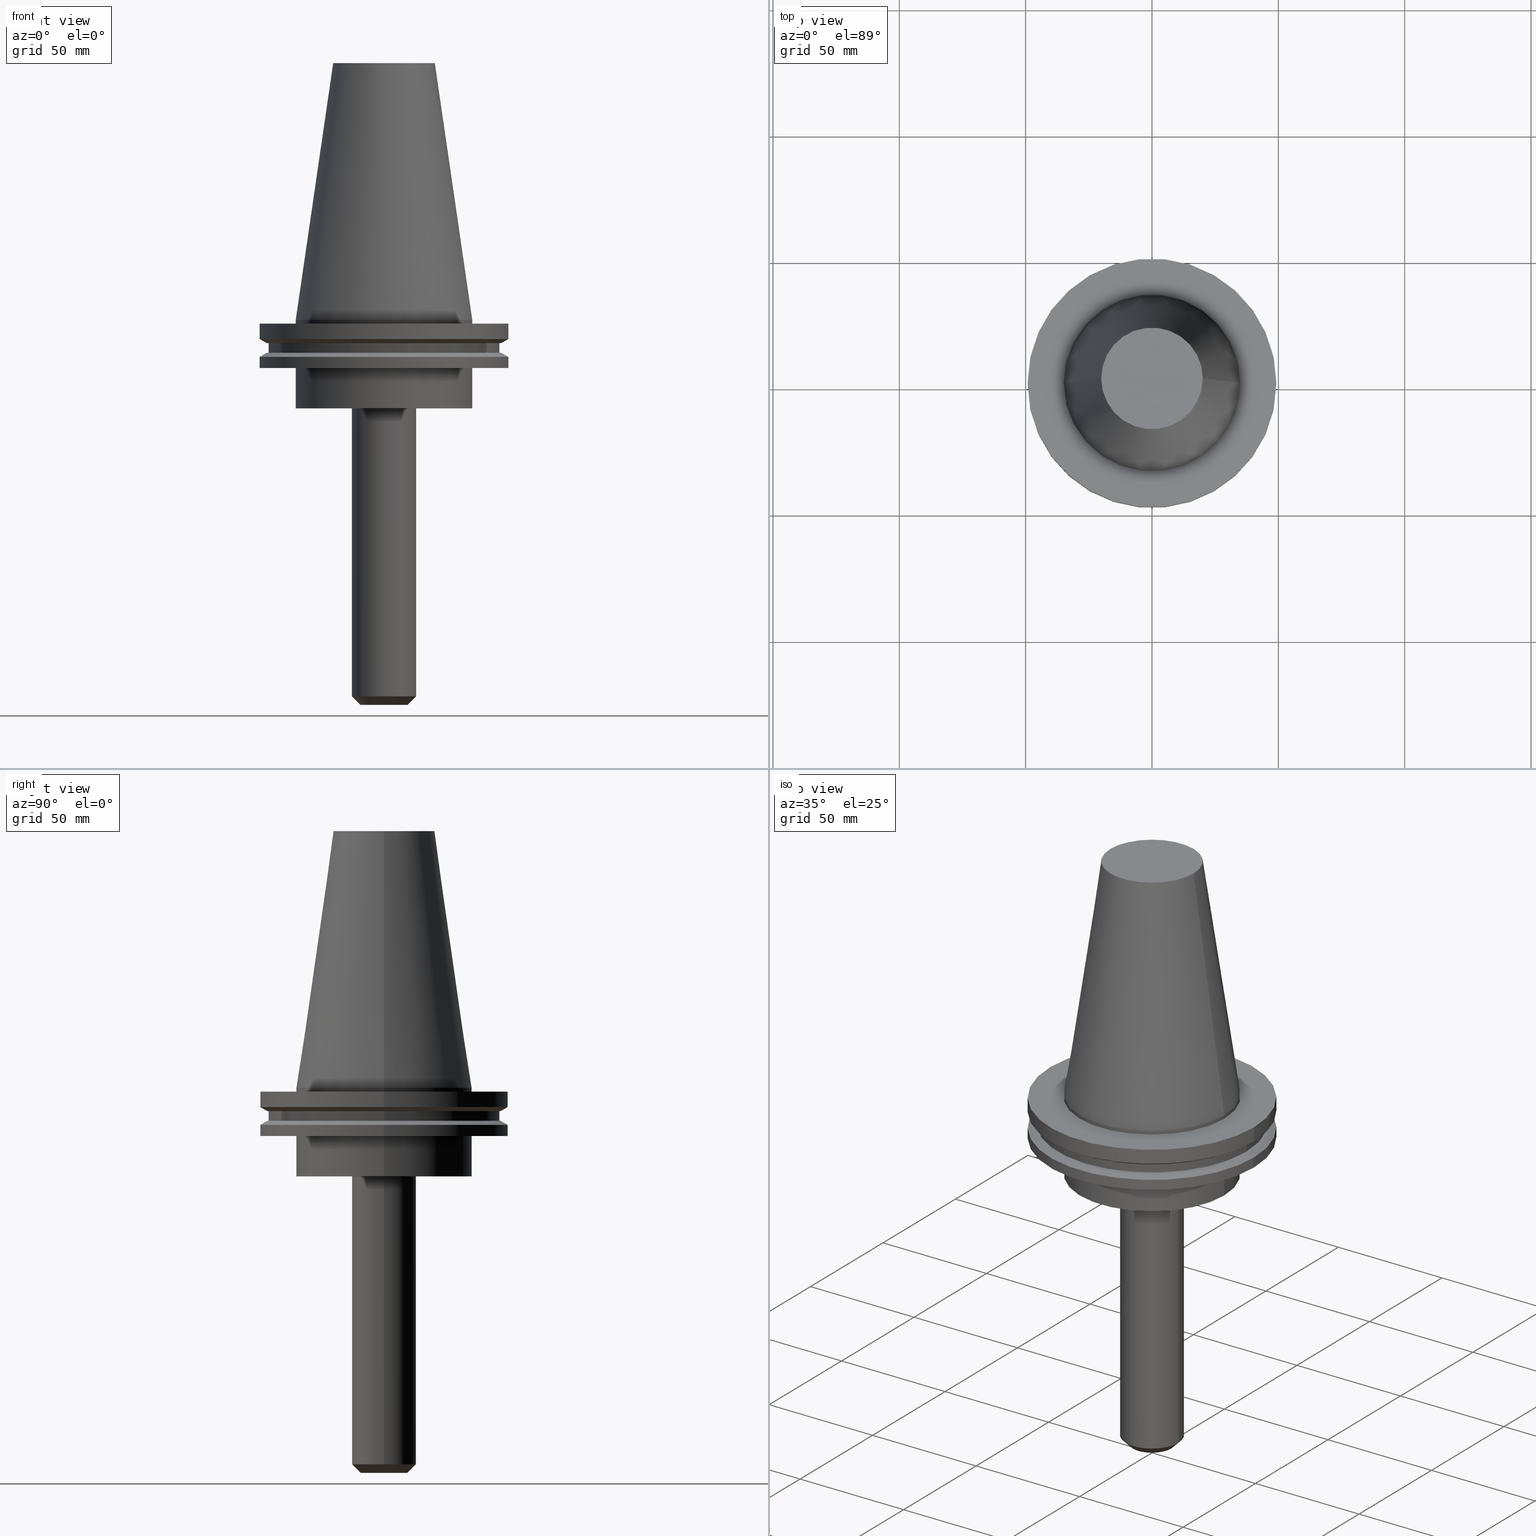
[diagram: canonical four-view strip — front | top / right | iso, engineering-drawing reading convention]
A machine part, canonical four-view strip (front | top / right | iso — engineering-drawing reading convention). The complete STEP part file that produces these views, byte-faithful:
ISO-10303-21;
HEADER;
FILE_DESCRIPTION (( 'STEP AP203' ),
    '1' );
FILE_NAME ('BCV50-EM_375-6.stp',
    '2022-03-03T16:42:42',
    ( '' ),
    ( '' ),
    'SwSTEP 2.0',
    'SolidWorks 2021',
    '' );
FILE_SCHEMA (( 'CONFIG_CONTROL_DESIGN' ));
ENDSEC;

DATA;
#1 = ORIENTED_EDGE ( 'NONE', *, *, #119, .F. ) ;
#2 = VERTEX_POINT ( 'NONE', #600 ) ;
#3 = CARTESIAN_POINT ( 'NONE',  ( -49.21499999999998920, 6.027099222003697037E-15, -19.04999999999999716 ) ) ;
#4 = ORIENTED_EDGE ( 'NONE', *, *, #473, .T. ) ;
#5 = ADVANCED_FACE ( 'NONE', ( #547 ), #810, .T. ) ;
#6 = CARTESIAN_POINT ( 'NONE',  ( -9.300000000000002487, 1.138921523207038771E-15, -152.4000000000000341 ) ) ;
#7 = EDGE_CURVE ( 'NONE', #498, #179, #9, .T. ) ;
#8 = CARTESIAN_POINT ( 'NONE',  ( 0.000000000000000000, 0.000000000000000000, 101.5999999999999943 ) ) ;
#9 = CIRCLE ( 'NONE', #647, 46.43919780457007818 ) ;
#10 = VERTEX_POINT ( 'NONE', #301 ) ;
#12 = VECTOR ( 'NONE', #413, 999.9999999999998863 ) ;
#11 =( NAMED_UNIT ( * ) SI_UNIT ( $, .STERADIAN. ) SOLID_ANGLE_UNIT ( ) );
#13 = DIRECTION ( 'NONE',  ( -1.000000000000000000, 0.000000000000000000, -0.000000000000000000 ) ) ;
#14 = ORIENTED_EDGE ( 'NONE', *, *, #543, .F. ) ;
#15 = ORIENTED_EDGE ( 'NONE', *, *, #501, .F. ) ;
#16 = CARTESIAN_POINT ( 'NONE',  ( 0.000000000000000000, 0.000000000000000000, -149.0000000000000284 ) ) ;
#17 = DIRECTION ( 'NONE',  ( -1.000000000000000000, 0.000000000000000000, 0.000000000000000000 ) ) ;
#18 = VERTEX_POINT ( 'NONE', #150 ) ;
#19 = EDGE_CURVE ( 'NONE', #685, #605, #230, .T. ) ;
#20 = APPROVAL ( #630, 'UNSPECIFIED' ) ;
#21 = AXIS2_PLACEMENT_3D ( 'NONE', #680, #406, #666 ) ;
#22 = ORIENTED_EDGE ( 'NONE', *, *, #378, .T. ) ;
#23 = FACE_OUTER_BOUND ( 'NONE', #534, .T. ) ;
#24 = FACE_OUTER_BOUND ( 'NONE', #816, .T. ) ;
#25 = VERTEX_POINT ( 'NONE', #414 ) ;
#26 = ORIENTED_EDGE ( 'NONE', *, *, #44, .F. ) ;
#27 = CALENDAR_DATE ( 2022, 3, 3 ) ;
#28 = VECTOR ( 'NONE', #33, 1000.000000000000000 ) ;
#29 = AXIS2_PLACEMENT_3D ( 'NONE', #223, #677, #85 ) ;
#30 = CARTESIAN_POINT ( 'NONE',  ( 0.000000000000000000, 0.000000000000000000, 101.5999999999999943 ) ) ;
#31 = CARTESIAN_POINT ( 'NONE',  ( 0.000000000000000000, 0.000000000000000000, -13.05499999999999794 ) ) ;
#32 = VERTEX_POINT ( 'NONE', #560 ) ;
#33 = DIRECTION ( 'NONE',  ( 0.8660254037844273833, 0.000000000000000000, 0.5000000000000195399 ) ) ;
#34 = ORIENTED_EDGE ( 'NONE', *, *, #137, .T. ) ;
#35 = CIRCLE ( 'NONE', #742, 34.92499999999999716 ) ;
#36 = APPROVAL_DATE_TIME ( #646, #622 ) ;
#37 = DIRECTION ( 'NONE',  ( -0.000000000000000000, -0.000000000000000000, 1.000000000000000000 ) ) ;
#38 = DIRECTION ( 'NONE',  ( 1.000000000000000000, 0.000000000000000000, 0.000000000000000000 ) ) ;
#39 = ORIENTED_EDGE ( 'NONE', *, *, #757, .T. ) ;
#40 = PERSON_AND_ORGANIZATION_ROLE ( 'design_owner' ) ;
#41 = CARTESIAN_POINT ( 'NONE',  ( 0.000000000000000000, 46.43919780457007818, -9.204999999999998295 ) ) ;
#42 = CIRCLE ( 'NONE', #173, 34.92499999999999005 ) ;
#43 = CARTESIAN_POINT ( 'NONE',  ( 0.000000000000000000, 0.000000000000000000, -152.4000000000000057 ) ) ;
#44 = EDGE_CURVE ( 'NONE', #370, #165, #540, .T. ) ;
#45 = ORIENTED_EDGE ( 'NONE', *, *, #204, .F. ) ;
#46 = LINE ( 'NONE', #247, #603 ) ;
#47 = SECURITY_CLASSIFICATION ( '', '', #299 ) ;
#48 = FACE_OUTER_BOUND ( 'NONE', #614, .T. ) ;
#49 = EDGE_CURVE ( 'NONE', #572, #131, #570, .T. ) ;
#50 = EDGE_CURVE ( 'NONE', #179, #498, #277, .T. ) ;
#51 = ORIENTED_EDGE ( 'NONE', *, *, #119, .T. ) ;
#52 = DIRECTION ( 'NONE',  ( -0.000000000000000000, -0.000000000000000000, 1.000000000000000000 ) ) ;
#53 = AXIS2_PLACEMENT_3D ( 'NONE', #147, #416, #152 ) ;
#54 = CARTESIAN_POINT ( 'NONE',  ( -34.92499999999999005, 4.277078946022130098E-15, -1.499999999999987566 ) ) ;
#55 = CARTESIAN_POINT ( 'NONE',  ( 0.000000000000000000, 0.000000000000000000, 101.5999999999999943 ) ) ;
#56 = DIRECTION ( 'NONE',  ( 1.000000000000000000, 0.000000000000000000, 0.000000000000000000 ) ) ;
#57 = CIRCLE ( 'NONE', #787, 49.21500000000000341 ) ;
#58 = AXIS2_PLACEMENT_3D ( 'NONE', #128, #205, #329 ) ;
#59 = CALENDAR_DATE ( 2022, 3, 3 ) ;
#60 = ORIENTED_EDGE ( 'NONE', *, *, #828, .T. ) ;
#61 = CARTESIAN_POINT ( 'NONE',  ( 0.000000000000000000, 0.000000000000000000, 101.5999999999999801 ) ) ;
#62 = DIRECTION ( 'NONE',  ( -0.000000000000000000, -0.000000000000000000, 1.000000000000000000 ) ) ;
#63 = VERTEX_POINT ( 'NONE', #317 ) ;
#64 = DIRECTION ( 'NONE',  ( 1.000000000000000000, 0.000000000000000000, 0.000000000000000000 ) ) ;
#65 = DIRECTION ( 'NONE',  ( 0.000000000000000000, -0.000000000000000000, 1.000000000000000000 ) ) ;
#66 = AXIS2_PLACEMENT_3D ( 'NONE', #16, #812, #737 ) ;
#67 = ORIENTED_EDGE ( 'NONE', *, *, #298, .F. ) ;
#68 = CYLINDRICAL_SURFACE ( 'NONE', #581, 49.21499999999999631 ) ;
#69 = EDGE_LOOP ( 'NONE', ( #615, #492, #468, #336 ) ) ;
#70 = CIRCLE ( 'NONE', #750, 12.69999999999999574 ) ;
#71 = CARTESIAN_POINT ( 'NONE',  ( -34.92499999999999716, 4.277078946022130887E-15, 101.5999999999999943 ) ) ;
#72 = FACE_BOUND ( 'NONE', #521, .T. ) ;
#73 = EDGE_CURVE ( 'NONE', #665, #185, #574, .T. ) ;
#74 = EDGE_CURVE ( 'NONE', #370, #482, #253, .T. ) ;
#75 = ORIENTED_EDGE ( 'NONE', *, *, #740, .T. ) ;
#76 = DIRECTION ( 'NONE',  ( 1.000000000000000000, 0.000000000000000000, 0.000000000000000000 ) ) ;
#77 = APPLICATION_CONTEXT ( 'configuration controlled 3d designs of mechanical parts and assemblies' ) ;
#78 = LINE ( 'NONE', #6, #12 ) ;
#79 = ORIENTED_EDGE ( 'NONE', *, *, #801, .F. ) ;
#80 = DIRECTION ( 'NONE',  ( 1.000000000000000000, 0.000000000000000000, 0.000000000000000000 ) ) ;
#81 = FACE_OUTER_BOUND ( 'NONE', #792, .T. ) ;
#82 = ORIENTED_EDGE ( 'NONE', *, *, #92, .F. ) ;
#83 = AXIS2_PLACEMENT_3D ( 'NONE', #333, #337, #136 ) ;
#84 = FACE_OUTER_BOUND ( 'NONE', #719, .T. ) ;
#85 = DIRECTION ( 'NONE',  ( 1.000000000000000000, 0.000000000000000000, 0.000000000000000000 ) ) ;
#86 = ADVANCED_FACE ( 'NONE', ( #637 ), #640, .F. ) ;
#87 = ORIENTED_EDGE ( 'NONE', *, *, #348, .T. ) ;
#88 = EDGE_LOOP ( 'NONE', ( #4, #39 ) ) ;
#89 = CARTESIAN_POINT ( 'NONE',  ( -49.21499999999999631, 6.027099222003697826E-15, -1.499999999999987566 ) ) ;
#90 = LINE ( 'NONE', #607, #765 ) ;
#91 = CARTESIAN_POINT ( 'NONE',  ( 0.000000000000000000, 0.000000000000000000, -13.05499999999999794 ) ) ;
#92 = EDGE_CURVE ( 'NONE', #363, #10, #707, .T. ) ;
#93 = EDGE_LOOP ( 'NONE', ( #514, #761, #815, #249 ) ) ;
#94 = CYLINDRICAL_SURFACE ( 'NONE', #188, 45.64500000000000313 ) ;
#95 = EDGE_LOOP ( 'NONE', ( #278, #673, #447, #67 ) ) ;
#96 = EDGE_LOOP ( 'NONE', ( #367, #182, #845, #87 ) ) ;
#97 = APPROVAL_DATE_TIME ( #817, #20 ) ;
#98 = CIRCLE ( 'NONE', #156, 34.92499999999999716 ) ;
#99 = AXIS2_PLACEMENT_3D ( 'NONE', #573, #512, #697 ) ;
#100 = CARTESIAN_POINT ( 'NONE',  ( -34.92499999999999005, 0.000000000000000000, 0.000000000000000000 ) ) ;
#101 = VERTEX_POINT ( 'NONE', #437 ) ;
#102 = EDGE_CURVE ( 'NONE', #238, #32, #311, .T. ) ;
#103 = PERSON_AND_ORGANIZATION ( #609, #465 ) ;
#104 = EDGE_CURVE ( 'NONE', #185, #284, #113, .T. ) ;
#105 = DIRECTION ( 'NONE',  ( -1.000000000000000000, 0.000000000000000000, 0.000000000000000000 ) ) ;
#106 = CARTESIAN_POINT ( 'NONE',  ( 0.000000000000000000, 0.000000000000000000, 0.000000000000000000 ) ) ;
#107 = ORIENTED_EDGE ( 'NONE', *, *, #621, .F. ) ;
#108 = DATE_TIME_ROLE ( 'creation_date' ) ;
#109 = DIRECTION ( 'NONE',  ( -0.000000000000000000, -0.000000000000000000, 1.000000000000000000 ) ) ;
#110 = ADVANCED_FACE ( 'NONE', ( #377 ), #389, .T. ) ;
#111 = DIRECTION ( 'NONE',  ( -0.000000000000000000, -0.000000000000000000, 1.000000000000000000 ) ) ;
#112 = ORIENTED_EDGE ( 'NONE', *, *, #114, .F. ) ;
#113 = CIRCLE ( 'NONE', #140, 12.70000000000000639 ) ;
#114 = EDGE_CURVE ( 'NONE', #853, #820, #225, .T. ) ;
#115 = DIRECTION ( 'NONE',  ( -0.000000000000000000, -0.000000000000000000, 1.000000000000000000 ) ) ;
#116 = ORIENTED_EDGE ( 'NONE', *, *, #537, .T. ) ;
#117 = LINE ( 'NONE', #559, #380 ) ;
#118 = DIRECTION ( 'NONE',  ( 1.000000000000000000, 0.000000000000000000, 0.000000000000000000 ) ) ;
#119 = EDGE_CURVE ( 'NONE', #732, #665, #733, .T. ) ;
#120 = DIRECTION ( 'NONE',  ( -0.000000000000000000, -0.000000000000000000, 1.000000000000000000 ) ) ;
#121 = CARTESIAN_POINT ( 'NONE',  ( 45.64500000000000313, 0.000000000000000000, 101.5999999999999943 ) ) ;
#122 = PERSON_AND_ORGANIZATION ( #609, #465 ) ;
#123 = CYLINDRICAL_SURFACE ( 'NONE', #262, 12.70000000000000107 ) ;
#124 = DIRECTION ( 'NONE',  ( -0.000000000000000000, -0.000000000000000000, 1.000000000000000000 ) ) ;
#125 = AXIS2_PLACEMENT_3D ( 'NONE', #342, #527, #402 ) ;
#126 = AXIS2_PLACEMENT_3D ( 'NONE', #770, #37, #822 ) ;
#127 = ORIENTED_EDGE ( 'NONE', *, *, #778, .F. ) ;
#128 = CARTESIAN_POINT ( 'NONE',  ( 0.000000000000000000, 0.000000000000000000, 101.5999999999999943 ) ) ;
#129 = ADVANCED_FACE ( 'NONE', ( #248, #48 ), #518, .F. ) ;
#130 = PLANE ( 'NONE',  #542 ) ;
#131 = VERTEX_POINT ( 'NONE', #54 ) ;
#132 = CARTESIAN_POINT ( 'NONE',  ( 0.000000000000000000, 0.000000000000000000, -9.204999999999991189 ) ) ;
#133 = CYLINDRICAL_SURFACE ( 'NONE', #432, 34.92499999999999716 ) ;
#134 = EDGE_CURVE ( 'NONE', #445, #63, #212, .T. ) ;
#135 = CARTESIAN_POINT ( 'NONE',  ( 34.92499999999999005, 4.277078946022130098E-15, 0.000000000000000000 ) ) ;
#136 = DIRECTION ( 'NONE',  ( 1.000000000000000000, 0.000000000000000000, 0.000000000000000000 ) ) ;
#137 = EDGE_CURVE ( 'NONE', #284, #18, #578, .T. ) ;
#138 = ADVANCED_FACE ( 'NONE', ( #446 ), #693, .T. ) ;
#139 = ORIENTED_EDGE ( 'NONE', *, *, #639, .T. ) ;
#140 = AXIS2_PLACEMENT_3D ( 'NONE', #304, #576, #823 ) ;
#141 = CIRCLE ( 'NONE', #267, 46.43919780457007818 ) ;
#142 = EDGE_LOOP ( 'NONE', ( #760, #699, #852, #528 ) ) ;
#143 = DIRECTION ( 'NONE',  ( 1.000000000000000000, 0.000000000000000000, 0.000000000000000000 ) ) ;
#144 = CYLINDRICAL_SURFACE ( 'NONE', #591, 45.64500000000000313 ) ;
#145 = EDGE_CURVE ( 'NONE', #685, #772, #392, .T. ) ;
#146 = ORIENTED_EDGE ( 'NONE', *, *, #390, .F. ) ;
#147 = CARTESIAN_POINT ( 'NONE',  ( 0.000000000000000000, 0.000000000000000000, -9.204999999999991189 ) ) ;
#148 = DIRECTION ( 'NONE',  ( 1.000000000000000000, 0.000000000000000000, 0.000000000000000000 ) ) ;
#149 = AXIS2_PLACEMENT_3D ( 'NONE', #61, #255, #517 ) ;
#150 = CARTESIAN_POINT ( 'NONE',  ( -12.69999999999999574, 1.555301434917138235E-15, -35.04999999999999716 ) ) ;
#151 = ORIENTED_EDGE ( 'NONE', *, *, #390, .T. ) ;
#152 = DIRECTION ( 'NONE',  ( 1.000000000000000000, 0.000000000000000000, 0.000000000000000000 ) ) ;
#153 = DIRECTION ( 'NONE',  ( -0.000000000000000000, -0.000000000000000000, 1.000000000000000000 ) ) ;
#154 = ORIENTED_EDGE ( 'NONE', *, *, #208, .T. ) ;
#155 = ORIENTED_EDGE ( 'NONE', *, *, #543, .T. ) ;
#156 = AXIS2_PLACEMENT_3D ( 'NONE', #632, #827, #694 ) ;
#157 = CARTESIAN_POINT ( 'NONE',  ( 0.000000000000000000, 0.000000000000000000, -35.04999999999999716 ) ) ;
#158 = LINE ( 'NONE', #162, #405 ) ;
#159 = ORIENTED_EDGE ( 'NONE', *, *, #104, .T. ) ;
#160 = EDGE_LOOP ( 'NONE', ( #629, #319 ) ) ;
#161 = DIRECTION ( 'NONE',  ( -0.000000000000000000, -0.000000000000000000, 1.000000000000000000 ) ) ;
#162 = CARTESIAN_POINT ( 'NONE',  ( -49.21499999999998920, 6.027099222003697037E-15, 101.5999999999999943 ) ) ;
#163 = DIRECTION ( 'NONE',  ( -0.000000000000000000, -0.000000000000000000, 1.000000000000000000 ) ) ;
#164 = CIRCLE ( 'NONE', #66, 12.70000000000000639 ) ;
#165 = VERTEX_POINT ( 'NONE', #431 ) ;
#166 = COORDINATED_UNIVERSAL_TIME_OFFSET ( 6, 0, .BEHIND. ) ;
#167 = DIRECTION ( 'NONE',  ( 0.1443082272672999988, 1.767266086135277066E-17, -0.9895327864921755756 ) ) ;
#168 = DIRECTION ( 'NONE',  ( -0.000000000000000000, -0.000000000000000000, 1.000000000000000000 ) ) ;
#169 = EDGE_CURVE ( 'NONE', #362, #2, #98, .T. ) ;
#170 = EDGE_CURVE ( 'NONE', #557, #25, #315, .T. ) ;
#171 = ORIENTED_EDGE ( 'NONE', *, *, #92, .T. ) ;
#172 = MECHANICAL_CONTEXT ( 'NONE', #441, 'mechanical' ) ;
#173 = AXIS2_PLACEMENT_3D ( 'NONE', #783, #124, #394 ) ;
#174 = AXIS2_PLACEMENT_3D ( 'NONE', #41, #314, #830 ) ;
#175 = CARTESIAN_POINT ( 'NONE',  ( 0.000000000000000000, 0.000000000000000000, -35.04999999999999716 ) ) ;
#176 = DIRECTION ( 'NONE',  ( -0.000000000000000000, -0.000000000000000000, 1.000000000000000000 ) ) ;
#177 = ORIENTED_EDGE ( 'NONE', *, *, #562, .F. ) ;
#178 = LOCAL_TIME ( 10, 42, 42.00000000000000000, #499 ) ;
#179 = VERTEX_POINT ( 'NONE', #369 ) ;
#180 = PERSON_AND_ORGANIZATION ( #609, #465 ) ;
#181 = DIRECTION ( 'NONE',  ( -0.000000000000000000, -0.000000000000000000, 1.000000000000000000 ) ) ;
#182 = ORIENTED_EDGE ( 'NONE', *, *, #565, .F. ) ;
#183 = VECTOR ( 'NONE', #412, 1000.000000000000000 ) ;
#184 = CARTESIAN_POINT ( 'NONE',  ( -45.64500000000000313, 5.589900314708094957E-15, 101.5999999999999943 ) ) ;
#185 = VERTEX_POINT ( 'NONE', #508 ) ;
#186 = FACE_OUTER_BOUND ( 'NONE', #69, .T. ) ;
#187 = VECTOR ( 'NONE', #115, 1000.000000000000000 ) ;
#188 = AXIS2_PLACEMENT_3D ( 'NONE', #553, #229, #541 ) ;
#189 = DIRECTION ( 'NONE',  ( 0.7071067811865463515, 0.000000000000000000, 0.7071067811865487940 ) ) ;
#190 = ADVANCED_FACE ( 'NONE', ( #564 ), #133, .T. ) ;
#191 = CYLINDRICAL_SURFACE ( 'NONE', #795, 34.92499999999999005 ) ;
#192 = DIRECTION ( 'NONE',  ( 1.000000000000000000, 0.000000000000000000, 0.000000000000000000 ) ) ;
#193 = DATE_AND_TIME ( #494, #755 ) ;
#194 = CONICAL_SURFACE ( 'NONE', #669, 46.43919780457007818, 1.047197551196575205 ) ;
#195 = DIRECTION ( 'NONE',  ( -0.8660254037844273833, 1.060575238724893110E-16, 0.5000000000000195399 ) ) ;
#196 = CARTESIAN_POINT ( 'NONE',  ( 0.000000000000000000, 45.64500000000000313, -13.05499999999999794 ) ) ;
#197 = VERTEX_POINT ( 'NONE', #201 ) ;
#198 = ADVANCED_FACE ( 'NONE', ( #592 ), #68, .T. ) ;
#199 = EDGE_CURVE ( 'NONE', #217, #731, #264, .T. ) ;
#200 = LINE ( 'NONE', #841, #582 ) ;
#201 = CARTESIAN_POINT ( 'NONE',  ( -34.92499999999999716, 4.277078946022130887E-15, -19.04999999999999716 ) ) ;
#202 = CIRCLE ( 'NONE', #419, 45.64500000000000313 ) ;
#203 = EDGE_LOOP ( 'NONE', ( #14, #739, #427, #388 ) ) ;
#204 = EDGE_CURVE ( 'NONE', #363, #217, #720, .T. ) ;
#205 = DIRECTION ( 'NONE',  ( -0.000000000000000000, -0.000000000000000000, 1.000000000000000000 ) ) ;
#206 = CARTESIAN_POINT ( 'NONE',  ( 0.000000000000000000, 0.000000000000000000, 0.000000000000000000 ) ) ;
#207 = EDGE_LOOP ( 'NONE', ( #107, #139, #358, #506 ) ) ;
#208 = EDGE_CURVE ( 'NONE', #820, #853, #353, .T. ) ;
#209 = DIRECTION ( 'NONE',  ( -0.000000000000000000, -0.000000000000000000, 1.000000000000000000 ) ) ;
#210 = APPROVAL_PERSON_ORGANIZATION ( #260, #622, #435 ) ;
#211 = CARTESIAN_POINT ( 'NONE',  ( 0.000000000000000000, 0.000000000000000000, -19.04999999999999716 ) ) ;
#212 = CIRCLE ( 'NONE', #692, 49.21499999999998920 ) ;
#213 = EDGE_CURVE ( 'NONE', #217, #363, #202, .T. ) ;
#214 = AXIS2_PLACEMENT_3D ( 'NONE', #252, #451, #105 ) ;
#215 = CARTESIAN_POINT ( 'NONE',  ( 0.000000000000000000, 0.000000000000000000, 0.000000000000000000 ) ) ;
#216 = ORIENTED_EDGE ( 'NONE', *, *, #114, .T. ) ;
#217 = VERTEX_POINT ( 'NONE', #718 ) ;
#218 = DIRECTION ( 'NONE',  ( 1.000000000000000000, 0.000000000000000000, 0.000000000000000000 ) ) ;
#219 = PRODUCT ( 'BCV50-EM_375-6', 'BCV50-EM_375-6', '', ( #172 ) ) ;
#220 = CARTESIAN_POINT ( 'NONE',  ( 0.000000000000000000, 0.000000000000000000, 0.000000000000000000 ) ) ;
#221 = CIRCLE ( 'NONE', #250, 4.764999999999991687 ) ;
#222 = EDGE_LOOP ( 'NONE', ( #759, #155, #575, #306 ) ) ;
#223 = CARTESIAN_POINT ( 'NONE',  ( 0.000000000000000000, 0.000000000000000000, -152.4000000000000341 ) ) ;
#224 = CARTESIAN_POINT ( 'NONE',  ( 0.000000000000000000, 0.000000000000000000, -9.204999999999991189 ) ) ;
#225 = CIRCLE ( 'NONE', #709, 49.21499999999999631 ) ;
#226 = ORIENTED_EDGE ( 'NONE', *, *, #689, .F. ) ;
#227 = AXIS2_PLACEMENT_3D ( 'NONE', #211, #417, #148 ) ;
#228 = DIRECTION ( 'NONE',  ( -0.000000000000000000, -0.000000000000000000, 1.000000000000000000 ) ) ;
#229 = DIRECTION ( 'NONE',  ( -0.000000000000000000, -0.000000000000000000, 1.000000000000000000 ) ) ;
#230 = LINE ( 'NONE', #555, #295 ) ;
#231 = ORIENTED_EDGE ( 'NONE', *, *, #490, .F. ) ;
#232 = APPROVAL_STATUS ( 'not_yet_approved' ) ;
#233 = CARTESIAN_POINT ( 'NONE',  ( 4.764999999999991687, 0.000000000000000000, -35.04999999999999716 ) ) ;
#234 = EDGE_CURVE ( 'NONE', #464, #605, #678, .T. ) ;
#235 = EDGE_CURVE ( 'NONE', #498, #445, #660, .T. ) ;
#236 = ORIENTED_EDGE ( 'NONE', *, *, #788, .T. ) ;
#237 = ADVANCED_FACE ( 'NONE', ( #847 ), #584, .F. ) ;
#238 = VERTEX_POINT ( 'NONE', #3 ) ;
#239 = DIRECTION ( 'NONE',  ( 1.000000000000000000, 0.000000000000000000, 0.000000000000000000 ) ) ;
#240 = DIRECTION ( 'NONE',  ( -1.000000000000000000, 0.000000000000000000, 0.000000000000000000 ) ) ;
#241 = ORIENTED_EDGE ( 'NONE', *, *, #19, .T. ) ;
#242 = CARTESIAN_POINT ( 'NONE',  ( 34.92499999999999716, 0.000000000000000000, -19.04999999999999716 ) ) ;
#243 = CARTESIAN_POINT ( 'NONE',  ( 46.43919780457007818, 0.000000000000000000, -9.204999999999991189 ) ) ;
#244 = ADVANCED_FACE ( 'NONE', ( #328, #271 ), #533, .F. ) ;
#245 = CC_DESIGN_DATE_AND_TIME_ASSIGNMENT ( #193, #440, ( #47 ) ) ;
#246 = ORIENTED_EDGE ( 'NONE', *, *, #385, .T. ) ;
#247 = CARTESIAN_POINT ( 'NONE',  ( 34.92499999999999005, 4.277078946022130098E-15, 0.000000000000000000 ) ) ;
#248 = FACE_BOUND ( 'NONE', #280, .T. ) ;
#249 = ORIENTED_EDGE ( 'NONE', *, *, #536, .F. ) ;
#250 = AXIS2_PLACEMENT_3D ( 'NONE', #157, #421, #662 ) ;
#251 = ADVANCED_FACE ( 'NONE', ( #780 ), #404, .F. ) ;
#252 = CARTESIAN_POINT ( 'NONE',  ( 0.000000000000000000, 0.000000000000000000, -14.65761014474876944 ) ) ;
#253 = LINE ( 'NONE', #243, #28 ) ;
#254 = ORIENTED_EDGE ( 'NONE', *, *, #7, .F. ) ;
#255 = DIRECTION ( 'NONE',  ( -0.000000000000000000, -0.000000000000000000, 1.000000000000000000 ) ) ;
#256 = CIRCLE ( 'NONE', #393, 34.92499999999999005 ) ;
#257 = CARTESIAN_POINT ( 'NONE',  ( 0.000000000000000000, 0.000000000000000000, -14.65761014474876944 ) ) ;
#258 = CARTESIAN_POINT ( 'NONE',  ( -9.300000000000002487, 1.347111479062088996E-15, -152.4000000000000341 ) ) ;
#259 = DIRECTION ( 'NONE',  ( -0.8660254037844169472, 0.000000000000000000, -0.5000000000000375255 ) ) ;
#260 = PERSON_AND_ORGANIZATION ( #609, #465 ) ;
#261 = ORIENTED_EDGE ( 'NONE', *, *, #696, .F. ) ;
#262 = AXIS2_PLACEMENT_3D ( 'NONE', #526, #655, #64 ) ;
#263 = DIRECTION ( 'NONE',  ( 1.000000000000000000, 0.000000000000000000, 0.000000000000000000 ) ) ;
#264 = LINE ( 'NONE', #121, #326 ) ;
#265 = DIRECTION ( 'NONE',  ( -0.000000000000000000, -0.000000000000000000, 1.000000000000000000 ) ) ;
#266 = CYLINDRICAL_SURFACE ( 'NONE', #763, 49.21499999999999631 ) ;
#267 = AXIS2_PLACEMENT_3D ( 'NONE', #507, #631, #372 ) ;
#268 = ORIENTED_EDGE ( 'NONE', *, *, #743, .T. ) ;
#269 = CARTESIAN_POINT ( 'NONE',  ( 0.000000000000000000, 0.000000000000000000, -152.4000000000000341 ) ) ;
#270 = LOCAL_TIME ( 10, 42, 42.00000000000000000, #307 ) ;
#271 = FACE_OUTER_BOUND ( 'NONE', #365, .T. ) ;
#272 = ADVANCED_FACE ( 'NONE', ( #596, #72 ), #130, .F. ) ;
#273 = CARTESIAN_POINT ( 'NONE',  ( 0.000000000000000000, 4.765000000000003233, -152.4000000000000341 ) ) ;
#274 = VECTOR ( 'NONE', #161, 1000.000000000000000 ) ;
#275 = APPLICATION_PROTOCOL_DEFINITION ( 'international standard', 'config_control_design', 1994, #441 ) ;
#276 = LINE ( 'NONE', #613, #472 ) ;
#277 = CIRCLE ( 'NONE', #449, 46.43919780457007818 ) ;
#278 = ORIENTED_EDGE ( 'NONE', *, *, #740, .F. ) ;
#279 = AXIS2_PLACEMENT_3D ( 'NONE', #523, #663, #462 ) ;
#280 = EDGE_LOOP ( 'NONE', ( #151, #679 ) ) ;
#281 = FACE_OUTER_BOUND ( 'NONE', #93, .T. ) ;
#282 = DIRECTION ( 'NONE',  ( -0.000000000000000000, -0.000000000000000000, 1.000000000000000000 ) ) ;
#283 = CC_DESIGN_SECURITY_CLASSIFICATION ( #47, ( #341 ) ) ;
#284 = VERTEX_POINT ( 'NONE', #457 ) ;
#285 = ADVANCED_FACE ( 'NONE', ( #726 ), #266, .T. ) ;
#286 = ORIENTED_EDGE ( 'NONE', *, *, #145, .F. ) ;
#287 =( LENGTH_UNIT ( ) NAMED_UNIT ( * ) SI_UNIT ( .MILLI., .METRE. ) );
#288 = DIRECTION ( 'NONE',  ( -0.000000000000000000, -0.000000000000000000, 1.000000000000000000 ) ) ;
#289 = AXIS2_PLACEMENT_3D ( 'NONE', #340, #670, #80 ) ;
#290 = DIRECTION ( 'NONE',  ( -0.000000000000000000, -0.000000000000000000, 1.000000000000000000 ) ) ;
#291 = FACE_BOUND ( 'NONE', #821, .T. ) ;
#292 = DIRECTION ( 'NONE',  ( 1.000000000000000000, 0.000000000000000000, 0.000000000000000000 ) ) ;
#293 = ORIENTED_EDGE ( 'NONE', *, *, #757, .F. ) ;
#294 = MANIFOLD_SOLID_BREP ( 'EM', #469 ) ;
#295 = VECTOR ( 'NONE', #758, 1000.000000000000000 ) ;
#296 = EDGE_LOOP ( 'NONE', ( #159, #34, #146, #15 ) ) ;
#297 = AXIS2_PLACEMENT_3D ( 'NONE', #436, #819, #568 ) ;
#298 = EDGE_CURVE ( 'NONE', #101, #482, #57, .T. ) ;
#299 = SECURITY_CLASSIFICATION_LEVEL ( 'unclassified' ) ;
#300 = LINE ( 'NONE', #303, #799 ) ;
#301 = CARTESIAN_POINT ( 'NONE',  ( -45.64500000000000313, 5.589900314708094957E-15, -9.204999999999991189 ) ) ;
#302 = EDGE_LOOP ( 'NONE', ( #604, #116, #22, #433 ) ) ;
#303 = CARTESIAN_POINT ( 'NONE',  ( 12.70000000000000107, 0.000000000000000000, 0.000000000000000000 ) ) ;
#304 = CARTESIAN_POINT ( 'NONE',  ( 0.000000000000000000, 0.000000000000000000, -149.0000000000000284 ) ) ;
#305 = AXIS2_PLACEMENT_3D ( 'NONE', #356, #595, #76 ) ;
#306 = ORIENTED_EDGE ( 'NONE', *, *, #651, .F. ) ;
#307 = COORDINATED_UNIVERSAL_TIME_OFFSET ( 6, 0, .BEHIND. ) ;
#308 = CARTESIAN_POINT ( 'NONE',  ( -20.10819343178871321, 0.000000000000000000, 101.5999999999999801 ) ) ;
#309 = DIRECTION ( 'NONE',  ( 0.000000000000000000, 0.000000000000000000, -1.000000000000000000 ) ) ;
#310 = ORIENTED_EDGE ( 'NONE', *, *, #73, .T. ) ;
#311 = CIRCLE ( 'NONE', #515, 49.21499999999998920 ) ;
#312 = SHAPE_DEFINITION_REPRESENTATION ( #684, #495 ) ;
#313 = VECTOR ( 'NONE', #259, 1000.000000000000114 ) ;
#314 = DIRECTION ( 'NONE',  ( 0.000000000000000000, -0.000000000000000000, 1.000000000000000000 ) ) ;
#315 = LINE ( 'NONE', #100, #826 ) ;
#316 = ORIENTED_EDGE ( 'NONE', *, *, #396, .F. ) ;
#317 = CARTESIAN_POINT ( 'NONE',  ( 49.21499999999998920, 0.000000000000000000, -14.65761014474876944 ) ) ;
#318 = ORIENTED_EDGE ( 'NONE', *, *, #788, .F. ) ;
#319 = ORIENTED_EDGE ( 'NONE', *, *, #716, .T. ) ;
#320 = VECTOR ( 'NONE', #850, 1000.000000000000000 ) ;
#321 = DIRECTION ( 'NONE',  ( 1.000000000000000000, 0.000000000000000000, 0.000000000000000000 ) ) ;
#322 = CARTESIAN_POINT ( 'NONE',  ( 0.000000000000000000, 0.000000000000000000, -14.65761014474876944 ) ) ;
#323 = APPROVAL ( #232, 'UNSPECIFIED' ) ;
#324 = VECTOR ( 'NONE', #836, 1000.000000000000000 ) ;
#325 = CYLINDRICAL_SURFACE ( 'NONE', #58, 49.21499999999998920 ) ;
#326 = VECTOR ( 'NONE', #330, 1000.000000000000000 ) ;
#327 = CIRCLE ( 'NONE', #516, 34.92499999999999005 ) ;
#328 = FACE_BOUND ( 'NONE', #844, .T. ) ;
#329 = DIRECTION ( 'NONE',  ( 1.000000000000000000, 0.000000000000000000, 0.000000000000000000 ) ) ;
#330 = DIRECTION ( 'NONE',  ( -0.000000000000000000, -0.000000000000000000, 1.000000000000000000 ) ) ;
#331 = CIRCLE ( 'NONE', #535, 49.21499999999998920 ) ;
#332 = LINE ( 'NONE', #588, #320 ) ;
#333 = CARTESIAN_POINT ( 'NONE',  ( 0.000000000000000000, 0.000000000000000000, -13.05499999999999794 ) ) ;
#334 = EDGE_CURVE ( 'NONE', #131, #572, #42, .T. ) ;
#335 = ADVANCED_FACE ( 'NONE', ( #800, #756 ), #682, .F. ) ;
#336 = ORIENTED_EDGE ( 'NONE', *, *, #235, .F. ) ;
#337 = DIRECTION ( 'NONE',  ( -0.000000000000000000, -0.000000000000000000, 1.000000000000000000 ) ) ;
#338 = CIRCLE ( 'NONE', #721, 12.69999999999999574 ) ;
#339 = ADVANCED_FACE ( 'NONE', ( #350 ), #752, .T. ) ;
#340 = CARTESIAN_POINT ( 'NONE',  ( 0.000000000000000000, 0.000000000000000000, -7.602389855251287187 ) ) ;
#341 = PRODUCT_DEFINITION_FORMATION_WITH_SPECIFIED_SOURCE ( 'ANY', '', #219, .NOT_KNOWN. ) ;
#342 = CARTESIAN_POINT ( 'NONE',  ( 0.000000000000000000, 0.000000000000000000, -35.04999999999999716 ) ) ;
#343 = VERTEX_POINT ( 'NONE', #489 ) ;
#344 = DIRECTION ( 'NONE',  ( 1.000000000000000000, 0.000000000000000000, 0.000000000000000000 ) ) ;
#345 = CARTESIAN_POINT ( 'NONE',  ( 49.21500000000000341, 0.000000000000000000, -7.602389855251287187 ) ) ;
#346 = EDGE_LOOP ( 'NONE', ( #593, #254, #566, #832 ) ) ;
#347 = FACE_OUTER_BOUND ( 'NONE', #95, .T. ) ;
#348 = EDGE_CURVE ( 'NONE', #25, #642, #256, .T. ) ;
#349 = ADVANCED_FACE ( 'NONE', ( #81 ), #144, .T. ) ;
#350 = FACE_OUTER_BOUND ( 'NONE', #302, .T. ) ;
#351 = EDGE_CURVE ( 'NONE', #238, #445, #158, .T. ) ;
#352 = ORIENTED_EDGE ( 'NONE', *, *, #169, .T. ) ;
#353 = CIRCLE ( 'NONE', #571, 49.21499999999999631 ) ;
#354 = CIRCLE ( 'NONE', #227, 34.92499999999999716 ) ;
#355 = ORIENTED_EDGE ( 'NONE', *, *, #74, .F. ) ;
#356 = CARTESIAN_POINT ( 'NONE',  ( 0.000000000000000000, 34.92499999999999716, -35.04999999999999716 ) ) ;
#357 = FACE_OUTER_BOUND ( 'NONE', #654, .T. ) ;
#358 = ORIENTED_EDGE ( 'NONE', *, *, #234, .T. ) ;
#359 = ORIENTED_EDGE ( 'NONE', *, *, #213, .F. ) ;
#360 = DIRECTION ( 'NONE',  ( -0.000000000000000000, -0.000000000000000000, 1.000000000000000000 ) ) ;
#361 = DIRECTION ( 'NONE',  ( -0.000000000000000000, -0.000000000000000000, 1.000000000000000000 ) ) ;
#362 = VERTEX_POINT ( 'NONE', #477 ) ;
#363 = VERTEX_POINT ( 'NONE', #481 ) ;
#364 = CARTESIAN_POINT ( 'NONE',  ( -4.764999999999991687, 5.835441997937130165E-16, -35.04999999999999716 ) ) ;
#365 = EDGE_LOOP ( 'NONE', ( #399, #478 ) ) ;
#366 = AXIS2_PLACEMENT_3D ( 'NONE', #373, #181, #628 ) ;
#367 = ORIENTED_EDGE ( 'NONE', *, *, #537, .F. ) ;
#368 = PERSON_AND_ORGANIZATION_ROLE ( 'creator' ) ;
#369 = CARTESIAN_POINT ( 'NONE',  ( 46.43919780457007818, 5.857130358318725715E-15, -13.05499999999999794 ) ) ;
#370 = VERTEX_POINT ( 'NONE', #745 ) ;
#371 = PERSON_AND_ORGANIZATION ( #609, #465 ) ;
#372 = DIRECTION ( 'NONE',  ( 1.000000000000000000, 0.000000000000000000, 0.000000000000000000 ) ) ;
#373 = CARTESIAN_POINT ( 'NONE',  ( 0.000000000000000000, 0.000000000000000000, -152.4000000000000341 ) ) ;
#374 = ORIENTED_EDGE ( 'NONE', *, *, #621, .T. ) ;
#375 = APPROVAL_ROLE ( '' ) ;
#376 = PLANE ( 'NONE',  #174 ) ;
#377 = FACE_OUTER_BOUND ( 'NONE', #96, .T. ) ;
#378 = EDGE_CURVE ( 'NONE', #642, #25, #327, .T. ) ;
#379 = ORIENTED_EDGE ( 'NONE', *, *, #49, .F. ) ;
#380 = VECTOR ( 'NONE', #430, 1000.000000000000000 ) ;
#381 = FACE_OUTER_BOUND ( 'NONE', #806, .T. ) ;
#382 = DIRECTION ( 'NONE',  ( -1.000000000000000000, 0.000000000000000000, 0.000000000000000000 ) ) ;
#383 = FACE_OUTER_BOUND ( 'NONE', #688, .T. ) ;
#384 = CARTESIAN_POINT ( 'NONE',  ( 9.300000000000002487, 0.000000000000000000, -152.4000000000000341 ) ) ;
#385 = EDGE_CURVE ( 'NONE', #32, #63, #90, .T. ) ;
#386 = CARTESIAN_POINT ( 'NONE',  ( 4.765000000000003233, 0.000000000000000000, -152.4000000000000057 ) ) ;
#387 = DIRECTION ( 'NONE',  ( -0.000000000000000000, -0.000000000000000000, 1.000000000000000000 ) ) ;
#388 = ORIENTED_EDGE ( 'NONE', *, *, #348, .F. ) ;
#389 = CONICAL_SURFACE ( 'NONE', #617, 34.92499999999999005, 0.1448138465474119452 ) ;
#390 = EDGE_CURVE ( 'NONE', #724, #18, #338, .T. ) ;
#391 = CARTESIAN_POINT ( 'NONE',  ( 49.21499999999998920, 6.027099222003697037E-15, -14.65761014474876944 ) ) ;
#392 = CIRCLE ( 'NONE', #530, 4.765000000000003233 ) ;
#393 = AXIS2_PLACEMENT_3D ( 'NONE', #215, #282, #738 ) ;
#394 = DIRECTION ( 'NONE',  ( 1.000000000000000000, 0.000000000000000000, 0.000000000000000000 ) ) ;
#395 = DIRECTION ( 'NONE',  ( 1.000000000000000000, 0.000000000000000000, 0.000000000000000000 ) ) ;
#396 = EDGE_CURVE ( 'NONE', #590, #197, #354, .T. ) ;
#397 = CC_DESIGN_PERSON_AND_ORGANIZATION_ASSIGNMENT ( #180, #520, ( #47 ) ) ;
#398 = DIRECTION ( 'NONE',  ( 1.000000000000000000, 0.000000000000000000, 0.000000000000000000 ) ) ;
#399 = ORIENTED_EDGE ( 'NONE', *, *, #7, .T. ) ;
#400 = AXIS2_PLACEMENT_3D ( 'NONE', #659, #529, #466 ) ;
#401 = FACE_OUTER_BOUND ( 'NONE', #785, .T. ) ;
#402 = DIRECTION ( 'NONE',  ( 1.000000000000000000, 0.000000000000000000, 0.000000000000000000 ) ) ;
#403 = EDGE_CURVE ( 'NONE', #482, #820, #276, .T. ) ;
#404 = PLANE ( 'NONE',  #279 ) ;
#405 = VECTOR ( 'NONE', #602, 1000.000000000000000 ) ;
#406 = DIRECTION ( 'NONE',  ( -0.000000000000000000, -0.000000000000000000, 1.000000000000000000 ) ) ;
#407 = CC_DESIGN_APPROVAL ( #20, ( #47 ) ) ;
#408 = CARTESIAN_POINT ( 'NONE',  ( 0.000000000000000000, 0.000000000000000000, -35.04999999999999716 ) ) ;
#409 = ORIENTED_EDGE ( 'NONE', *, *, #208, .F. ) ;
#410 = ADVANCED_FACE ( 'NONE', ( #667 ), #710, .T. ) ;
#411 = ORIENTED_EDGE ( 'NONE', *, *, #234, .F. ) ;
#412 = DIRECTION ( 'NONE',  ( -0.000000000000000000, -0.000000000000000000, 1.000000000000000000 ) ) ;
#413 = DIRECTION ( 'NONE',  ( -0.7071067811865463515, 8.659560562354919300E-17, 0.7071067811865487940 ) ) ;
#414 = CARTESIAN_POINT ( 'NONE',  ( -34.92499999999999005, 0.000000000000000000, 0.000000000000000000 ) ) ;
#415 = ORIENTED_EDGE ( 'NONE', *, *, #102, .T. ) ;
#416 = DIRECTION ( 'NONE',  ( -0.000000000000000000, -0.000000000000000000, 1.000000000000000000 ) ) ;
#417 = DIRECTION ( 'NONE',  ( -0.000000000000000000, -0.000000000000000000, 1.000000000000000000 ) ) ;
#418 = ORIENTED_EDGE ( 'NONE', *, *, #134, .F. ) ;
#419 = AXIS2_PLACEMENT_3D ( 'NONE', #851, #209, #398 ) ;
#420 = ORIENTED_EDGE ( 'NONE', *, *, #351, .T. ) ;
#421 = DIRECTION ( 'NONE',  ( -0.000000000000000000, -0.000000000000000000, 1.000000000000000000 ) ) ;
#422 = DIRECTION ( 'NONE',  ( 1.000000000000000000, 0.000000000000000000, 0.000000000000000000 ) ) ;
#423 = CARTESIAN_POINT ( 'NONE',  ( 0.000000000000000000, 0.000000000000000000, -1.499999999999987566 ) ) ;
#424 = PERSON_AND_ORGANIZATION ( #609, #465 ) ;
#425 = CYLINDRICAL_SURFACE ( 'NONE', #450, 34.92499999999999716 ) ;
#426 = CONICAL_SURFACE ( 'NONE', #703, 46.43919780457007818, 1.047197551196575205 ) ;
#427 = ORIENTED_EDGE ( 'NONE', *, *, #651, .T. ) ;
#428 = ORIENTED_EDGE ( 'NONE', *, *, #199, .T. ) ;
#429 = CALENDAR_DATE ( 2022, 3, 3 ) ;
#430 = DIRECTION ( 'NONE',  ( -0.000000000000000000, -0.000000000000000000, 1.000000000000000000 ) ) ;
#431 = CARTESIAN_POINT ( 'NONE',  ( -46.43919780457007818, 5.857130358318727293E-15, -9.204999999999991189 ) ) ;
#432 = AXIS2_PLACEMENT_3D ( 'NONE', #644, #722, #653 ) ;
#433 = ORIENTED_EDGE ( 'NONE', *, *, #170, .F. ) ;
#434 = VECTOR ( 'NONE', #265, 1000.000000000000000 ) ;
#435 = APPROVAL_ROLE ( '' ) ;
#436 = CARTESIAN_POINT ( 'NONE',  ( 0.000000000000000000, 0.000000000000000000, -35.04999999999999716 ) ) ;
#437 = CARTESIAN_POINT ( 'NONE',  ( -49.21500000000000341, 6.027099222003699404E-15, -7.602389855251287187 ) ) ;
#438 = ORIENTED_EDGE ( 'NONE', *, *, #473, .F. ) ;
#439 = ADVANCED_FACE ( 'NONE', ( #357 ), #425, .T. ) ;
#440 = DATE_TIME_ROLE ( 'classification_date' ) ;
#441 = APPLICATION_CONTEXT ( 'configuration controlled 3d designs of mechanical parts and assemblies' ) ;
#442 = CARTESIAN_POINT ( 'NONE',  ( 0.000000000000000000, 0.000000000000000000, -152.4000000000000057 ) ) ;
#443 = DIRECTION ( 'NONE',  ( 0.000000000000000000, -0.000000000000000000, 1.000000000000000000 ) ) ;
#444 = CIRCLE ( 'NONE', #149, 20.10819343178871321 ) ;
#445 = VERTEX_POINT ( 'NONE', #484 ) ;
#446 = FACE_OUTER_BOUND ( 'NONE', #346, .T. ) ;
#447 = ORIENTED_EDGE ( 'NONE', *, *, #74, .T. ) ;
#448 = ORIENTED_EDGE ( 'NONE', *, *, #213, .T. ) ;
#449 = AXIS2_PLACEMENT_3D ( 'NONE', #91, #833, #513 ) ;
#450 = AXIS2_PLACEMENT_3D ( 'NONE', #687, #814, #422 ) ;
#451 = DIRECTION ( 'NONE',  ( 0.000000000000000000, 0.000000000000000000, -1.000000000000000000 ) ) ;
#452 = ADVANCED_FACE ( 'NONE', ( #24 ), #94, .T. ) ;
#453 = CARTESIAN_POINT ( 'NONE',  ( 0.000000000000000000, 0.000000000000000000, 0.000000000000000000 ) ) ;
#454 = ORIENTED_EDGE ( 'NONE', *, *, #298, .T. ) ;
#455 = APPROVAL_PERSON_ORGANIZATION ( #686, #20, #700 ) ;
#456 = CARTESIAN_POINT ( 'NONE',  ( 12.69999999999999574, 0.000000000000000000, -35.04999999999999716 ) ) ;
#457 = CARTESIAN_POINT ( 'NONE',  ( -12.70000000000000639, 1.555301434917139419E-15, -149.0000000000000284 ) ) ;
#458 = DIRECTION ( 'NONE',  ( 1.000000000000000000, 0.000000000000000000, 0.000000000000000000 ) ) ;
#459 = FACE_OUTER_BOUND ( 'NONE', #296, .T. ) ;
#460 = CARTESIAN_POINT ( 'NONE',  ( 0.000000000000000000, 0.000000000000000000, 101.5999999999999943 ) ) ;
#461 = CARTESIAN_POINT ( 'NONE',  ( 34.92499999999999005, 0.000000000000000000, 101.5999999999999943 ) ) ;
#462 = DIRECTION ( 'NONE',  ( -1.000000000000000000, 0.000000000000000000, -0.000000000000000000 ) ) ;
#463 = DIRECTION ( 'NONE',  ( 1.000000000000000000, 0.000000000000000000, 0.000000000000000000 ) ) ;
#464 = VERTEX_POINT ( 'NONE', #364 ) ;
#465 = ORGANIZATION ( 'UNSPECIFIED', 'UNSPECIFIED', '' ) ;
#466 = DIRECTION ( 'NONE',  ( 1.000000000000000000, 0.000000000000000000, 0.000000000000000000 ) ) ;
#467 = DIRECTION ( 'NONE',  ( 1.000000000000000000, 0.000000000000000000, 0.000000000000000000 ) ) ;
#468 = ORIENTED_EDGE ( 'NONE', *, *, #774, .T. ) ;
#469 = CLOSED_SHELL ( 'NONE', ( #237, #410, #741, #717, #198, #708, #452, #585, #650, #190, #339, #110, #251, #129, #439, #779, #834, #138, #244, #349, #623, #835, #285, #335, #5, #749, #519, #272, #86, #843 ) ) ;
#470 = DIRECTION ( 'NONE',  ( -0.000000000000000000, -0.000000000000000000, 1.000000000000000000 ) ) ;
#471 = AXIS2_PLACEMENT_3D ( 'NONE', #8, #544, #618 ) ;
#472 = VECTOR ( 'NONE', #599, 1000.000000000000000 ) ;
#473 = EDGE_CURVE ( 'NONE', #731, #10, #649, .T. ) ;
#474 = CC_DESIGN_PERSON_AND_ORGANIZATION_ASSIGNMENT ( #103, #558, ( #475 ) ) ;
#475 = PRODUCT_DEFINITION ( 'UNKNOWN', '', #341, #747 ) ;
#476 = PLANE ( 'NONE',  #305 ) ;
#477 = CARTESIAN_POINT ( 'NONE',  ( 34.92499999999999716, 0.000000000000000000, -35.04999999999999716 ) ) ;
#478 = ORIENTED_EDGE ( 'NONE', *, *, #50, .T. ) ;
#479 = FACE_OUTER_BOUND ( 'NONE', #625, .T. ) ;
#480 = VECTOR ( 'NONE', #195, 1000.000000000000000 ) ;
#481 = CARTESIAN_POINT ( 'NONE',  ( -45.64500000000000313, 5.589900314708094957E-15, -13.05499999999999794 ) ) ;
#482 = VERTEX_POINT ( 'NONE', #345 ) ;
#483 = ORIENTED_EDGE ( 'NONE', *, *, #562, .T. ) ;
#484 = CARTESIAN_POINT ( 'NONE',  ( -49.21499999999998920, 6.027099222003697037E-15, -14.65761014474876944 ) ) ;
#485 = AXIS2_PLACEMENT_3D ( 'NONE', #423, #163, #683 ) ;
#486 = ORIENTED_EDGE ( 'NONE', *, *, #696, .T. ) ;
#487 = AXIS2_PLACEMENT_3D ( 'NONE', #220, #751, #17 ) ;
#488 = PLANE ( 'NONE',  #641 ) ;
#489 = CARTESIAN_POINT ( 'NONE',  ( 20.10819343178871321, 3.369811209154858606E-15, 101.5999999999999801 ) ) ;
#490 = EDGE_CURVE ( 'NONE', #732, #284, #78, .T. ) ;
#491 = LOCAL_TIME ( 10, 42, 42.00000000000000000, #691 ) ;
#492 = ORIENTED_EDGE ( 'NONE', *, *, #664, .T. ) ;
#493 = ORIENTED_EDGE ( 'NONE', *, *, #774, .F. ) ;
#494 = CALENDAR_DATE ( 2022, 3, 3 ) ;
#495 = ADVANCED_BREP_SHAPE_REPRESENTATION ( 'BCV50-EM_375-6', ( #294, #612 ), #728 ) ;
#496 = FACE_BOUND ( 'NONE', #88, .T. ) ;
#497 = ORIENTED_EDGE ( 'NONE', *, *, #169, .F. ) ;
#498 = VERTEX_POINT ( 'NONE', #671 ) ;
#499 = COORDINATED_UNIVERSAL_TIME_OFFSET ( 6, 0, .BEHIND. ) ;
#500 = DIRECTION ( 'NONE',  ( -0.000000000000000000, -0.000000000000000000, 1.000000000000000000 ) ) ;
#501 = EDGE_CURVE ( 'NONE', #185, #724, #300, .T. ) ;
#502 = AXIS2_PLACEMENT_3D ( 'NONE', #257, #309, #382 ) ;
#503 = EDGE_LOOP ( 'NONE', ( #561, #75, #668, #355 ) ) ;
#504 = DIRECTION ( 'NONE',  ( 0.000000000000000000, 0.000000000000000000, 1.000000000000000000 ) ) ;
#505 = DIRECTION ( 'NONE',  ( 1.000000000000000000, 0.000000000000000000, 0.000000000000000000 ) ) ;
#506 = ORIENTED_EDGE ( 'NONE', *, *, #19, .F. ) ;
#507 = CARTESIAN_POINT ( 'NONE',  ( 0.000000000000000000, 0.000000000000000000, -9.204999999999991189 ) ) ;
#508 = CARTESIAN_POINT ( 'NONE',  ( 12.70000000000000639, 0.000000000000000000, -149.0000000000000284 ) ) ;
#509 = EDGE_LOOP ( 'NONE', ( #379, #802 ) ) ;
#510 = EDGE_CURVE ( 'NONE', #165, #370, #141, .T. ) ;
#511 = PRODUCT_RELATED_PRODUCT_CATEGORY ( 'detail', '', ( #219 ) ) ;
#512 = DIRECTION ( 'NONE',  ( -0.000000000000000000, -0.000000000000000000, 1.000000000000000000 ) ) ;
#513 = DIRECTION ( 'NONE',  ( 1.000000000000000000, 0.000000000000000000, 0.000000000000000000 ) ) ;
#514 = ORIENTED_EDGE ( 'NONE', *, *, #137, .F. ) ;
#515 = AXIS2_PLACEMENT_3D ( 'NONE', #775, #111, #764 ) ;
#516 = AXIS2_PLACEMENT_3D ( 'NONE', #550, #153, #292 ) ;
#517 = DIRECTION ( 'NONE',  ( 1.000000000000000000, 0.000000000000000000, 0.000000000000000000 ) ) ;
#518 = PLANE ( 'NONE',  #580 ) ;
#519 = ADVANCED_FACE ( 'NONE', ( #381 ), #813, .T. ) ;
#520 = PERSON_AND_ORGANIZATION_ROLE ( 'classification_officer' ) ;
#521 = EDGE_LOOP ( 'NONE', ( #635, #374 ) ) ;
#522 = LINE ( 'NONE', #652, #480 ) ;
#523 = CARTESIAN_POINT ( 'NONE',  ( 0.000000000000000000, 20.10819343178871321, 101.5999999999999943 ) ) ;
#524 = APPLICATION_PROTOCOL_DEFINITION ( 'international standard', 'config_control_design', 1994, #77 ) ;
#525 = VECTOR ( 'NONE', #793, 1000.000000000000114 ) ;
#526 = CARTESIAN_POINT ( 'NONE',  ( 0.000000000000000000, 0.000000000000000000, 0.000000000000000000 ) ) ;
#527 = DIRECTION ( 'NONE',  ( -0.000000000000000000, -0.000000000000000000, 1.000000000000000000 ) ) ;
#528 = ORIENTED_EDGE ( 'NONE', *, *, #73, .F. ) ;
#529 = DIRECTION ( 'NONE',  ( -0.000000000000000000, -0.000000000000000000, 1.000000000000000000 ) ) ;
#530 = AXIS2_PLACEMENT_3D ( 'NONE', #43, #168, #569 ) ;
#531 = DIRECTION ( 'NONE',  ( -0.000000000000000000, -0.000000000000000000, 1.000000000000000000 ) ) ;
#532 = CARTESIAN_POINT ( 'NONE',  ( 9.300000000000002487, 0.000000000000000000, -152.4000000000000341 ) ) ;
#533 = PLANE ( 'NONE',  #797 ) ;
#534 = EDGE_LOOP ( 'NONE', ( #608, #636 ) ) ;
#535 = AXIS2_PLACEMENT_3D ( 'NONE', #545, #228, #143 ) ;
#536 = EDGE_CURVE ( 'NONE', #18, #724, #70, .T. ) ;
#537 = EDGE_CURVE ( 'NONE', #343, #642, #46, .T. ) ;
#538 = DIRECTION ( 'NONE',  ( 0.000000000000000000, 0.000000000000000000, -1.000000000000000000 ) ) ;
#539 = LINE ( 'NONE', #71, #183 ) ;
#540 = CIRCLE ( 'NONE', #837, 46.43919780457007818 ) ;
#541 = DIRECTION ( 'NONE',  ( 1.000000000000000000, 0.000000000000000000, 0.000000000000000000 ) ) ;
#542 = AXIS2_PLACEMENT_3D ( 'NONE', #273, #65, #192 ) ;
#543 = EDGE_CURVE ( 'NONE', #131, #25, #117, .T. ) ;
#544 = DIRECTION ( 'NONE',  ( -0.000000000000000000, -0.000000000000000000, 1.000000000000000000 ) ) ;
#545 = CARTESIAN_POINT ( 'NONE',  ( 0.000000000000000000, 0.000000000000000000, -14.65761014474876944 ) ) ;
#546 = DIRECTION ( 'NONE',  ( 1.000000000000000000, 0.000000000000000000, 0.000000000000000000 ) ) ;
#547 = FACE_OUTER_BOUND ( 'NONE', #203, .T. ) ;
#548 = CC_DESIGN_PERSON_AND_ORGANIZATION_ASSIGNMENT ( #567, #767, ( #341 ) ) ;
#549 = ORIENTED_EDGE ( 'NONE', *, *, #403, .F. ) ;
#550 = CARTESIAN_POINT ( 'NONE',  ( 0.000000000000000000, 0.000000000000000000, 0.000000000000000000 ) ) ;
#551 = DIRECTION ( 'NONE',  ( 1.000000000000000000, 0.000000000000000000, 0.000000000000000000 ) ) ;
#552 = CARTESIAN_POINT ( 'NONE',  ( 0.000000000000000000, 49.21499999999998920, -19.04999999999999716 ) ) ;
#553 = CARTESIAN_POINT ( 'NONE',  ( 0.000000000000000000, 0.000000000000000000, 101.5999999999999943 ) ) ;
#554 = VECTOR ( 'NONE', #189, 999.9999999999998863 ) ;
#555 = CARTESIAN_POINT ( 'NONE',  ( 4.764999999999997904, 0.000000000000000000, 0.000000000000000000 ) ) ;
#556 = CIRCLE ( 'NONE', #297, 34.92499999999999716 ) ;
#557 = VERTEX_POINT ( 'NONE', #308 ) ;
#558 = PERSON_AND_ORGANIZATION_ROLE ( 'creator' ) ;
#559 = CARTESIAN_POINT ( 'NONE',  ( -34.92499999999999005, 4.277078946022130098E-15, 101.5999999999999943 ) ) ;
#560 = CARTESIAN_POINT ( 'NONE',  ( 49.21499999999998920, 0.000000000000000000, -19.04999999999999716 ) ) ;
#561 = ORIENTED_EDGE ( 'NONE', *, *, #44, .T. ) ;
#562 = EDGE_CURVE ( 'NONE', #2, #362, #556, .T. ) ;
#563 = AXIS2_PLACEMENT_3D ( 'NONE', #269, #790, #729 ) ;
#564 = FACE_OUTER_BOUND ( 'NONE', #690, .T. ) ;
#565 = EDGE_CURVE ( 'NONE', #557, #343, #735, .T. ) ;
#566 = ORIENTED_EDGE ( 'NONE', *, *, #235, .T. ) ;
#567 = PERSON_AND_ORGANIZATION ( #609, #465 ) ;
#568 = DIRECTION ( 'NONE',  ( 1.000000000000000000, 0.000000000000000000, 0.000000000000000000 ) ) ;
#569 = DIRECTION ( 'NONE',  ( 1.000000000000000000, 0.000000000000000000, 0.000000000000000000 ) ) ;
#570 = CIRCLE ( 'NONE', #485, 34.92499999999999005 ) ;
#571 = AXIS2_PLACEMENT_3D ( 'NONE', #855, #714, #56 ) ;
#572 = VERTEX_POINT ( 'NONE', #702 ) ;
#573 = CARTESIAN_POINT ( 'NONE',  ( 0.000000000000000000, 0.000000000000000000, 101.5999999999999801 ) ) ;
#574 = LINE ( 'NONE', #384, #554 ) ;
#575 = ORIENTED_EDGE ( 'NONE', *, *, #378, .F. ) ;
#576 = DIRECTION ( 'NONE',  ( -0.000000000000000000, -0.000000000000000000, 1.000000000000000000 ) ) ;
#577 = CIRCLE ( 'NONE', #563, 9.300000000000002487 ) ;
#578 = LINE ( 'NONE', #704, #324 ) ;
#579 = COORDINATED_UNIVERSAL_TIME_OFFSET ( 6, 0, .BEHIND. ) ;
#580 = AXIS2_PLACEMENT_3D ( 'NONE', #771, #443, #118 ) ;
#581 = AXIS2_PLACEMENT_3D ( 'NONE', #794, #62, #467 ) ;
#582 = VECTOR ( 'NONE', #782, 1000.000000000000000 ) ;
#583 = CARTESIAN_POINT ( 'NONE',  ( 45.64500000000000313, 0.000000000000000000, -9.204999999999991189 ) ) ;
#584 = CYLINDRICAL_SURFACE ( 'NONE', #648, 4.764999999999997904 ) ;
#585 = ADVANCED_FACE ( 'NONE', ( #186 ), #776, .T. ) ;
#586 = CARTESIAN_POINT ( 'NONE',  ( -49.21499999999998920, 0.000000000000000000, -14.65761014474876944 ) ) ;
#587 = AXIS2_PLACEMENT_3D ( 'NONE', #734, #360, #218 ) ;
#588 = CARTESIAN_POINT ( 'NONE',  ( 34.92499999999999716, 0.000000000000000000, 101.5999999999999943 ) ) ;
#589 = DIRECTION ( 'NONE',  ( 1.000000000000000000, 0.000000000000000000, 0.000000000000000000 ) ) ;
#590 = VERTEX_POINT ( 'NONE', #242 ) ;
#591 = AXIS2_PLACEMENT_3D ( 'NONE', #30, #288, #546 ) ;
#592 = FACE_OUTER_BOUND ( 'NONE', #705, .T. ) ;
#593 = ORIENTED_EDGE ( 'NONE', *, *, #664, .F. ) ;
#594 = ORIENTED_EDGE ( 'NONE', *, *, #675, .T. ) ;
#595 = DIRECTION ( 'NONE',  ( 0.000000000000000000, -0.000000000000000000, 1.000000000000000000 ) ) ;
#596 = FACE_OUTER_BOUND ( 'NONE', #766, .T. ) ;
#597 = ORIENTED_EDGE ( 'NONE', *, *, #385, .F. ) ;
#598 = CARTESIAN_POINT ( 'NONE',  ( -49.21499999999999631, 6.027099222003697826E-15, 101.5999999999999943 ) ) ;
#599 = DIRECTION ( 'NONE',  ( -0.000000000000000000, -0.000000000000000000, 1.000000000000000000 ) ) ;
#600 = CARTESIAN_POINT ( 'NONE',  ( -34.92499999999999716, 4.277078946022130887E-15, -35.04999999999999716 ) ) ;
#601 =( NAMED_UNIT ( * ) PLANE_ANGLE_UNIT ( ) SI_UNIT ( $, .RADIAN. ) );
#602 = DIRECTION ( 'NONE',  ( -0.000000000000000000, -0.000000000000000000, 1.000000000000000000 ) ) ;
#603 = VECTOR ( 'NONE', #167, 999.9999999999998863 ) ;
#604 = ORIENTED_EDGE ( 'NONE', *, *, #716, .F. ) ;
#605 = VERTEX_POINT ( 'NONE', #233 ) ;
#606 = CARTESIAN_POINT ( 'NONE',  ( 0.000000000000000000, 0.000000000000000000, -9.204999999999991189 ) ) ;
#607 = CARTESIAN_POINT ( 'NONE',  ( 49.21499999999998920, 0.000000000000000000, 101.5999999999999943 ) ) ;
#608 = ORIENTED_EDGE ( 'NONE', *, *, #675, .F. ) ;
#609 = PERSON ( 'UNSPECIFIED', 'UNSPECIFIED', 'UNSPECIFIED', ('UNSPECIFIED'), ('UNSPECIFIED'), ('UNSPECIFIED') ) ;
#610 = EDGE_LOOP ( 'NONE', ( #154, #216 ) ) ;
#611 = CARTESIAN_POINT ( 'NONE',  ( -4.765000000000003233, 5.835441997937142984E-16, -152.4000000000000057 ) ) ;
#612 = AXIS2_PLACEMENT_3D ( 'NONE', #762, #504, #458 ) ;
#613 = CARTESIAN_POINT ( 'NONE',  ( 49.21499999999999631, 0.000000000000000000, 101.5999999999999943 ) ) ;
#614 = EDGE_LOOP ( 'NONE', ( #497, #177 ) ) ;
#615 = ORIENTED_EDGE ( 'NONE', *, *, #50, .F. ) ;
#616 = CARTESIAN_POINT ( 'NONE',  ( 0.000000000000000000, 0.000000000000000000, -9.204999999999991189 ) ) ;
#617 = AXIS2_PLACEMENT_3D ( 'NONE', #453, #768, #240 ) ;
#618 = DIRECTION ( 'NONE',  ( 1.000000000000000000, 0.000000000000000000, 0.000000000000000000 ) ) ;
#619 = CIRCLE ( 'NONE', #838, 4.765000000000003233 ) ;
#620 = ORIENTED_EDGE ( 'NONE', *, *, #403, .T. ) ;
#621 = EDGE_CURVE ( 'NONE', #772, #685, #619, .T. ) ;
#622 = APPROVAL ( #781, 'UNSPECIFIED' ) ;
#623 = ADVANCED_FACE ( 'NONE', ( #383, #496 ), #376, .F. ) ;
#624 = DIRECTION ( 'NONE',  ( -0.000000000000000000, -0.000000000000000000, 1.000000000000000000 ) ) ;
#625 = EDGE_LOOP ( 'NONE', ( #803, #415, #246, #418 ) ) ;
#626 = DATE_AND_TIME ( #429, #818 ) ;
#627 = DIRECTION ( 'NONE',  ( -0.000000000000000000, -0.000000000000000000, 1.000000000000000000 ) ) ;
#628 = DIRECTION ( 'NONE',  ( 1.000000000000000000, 0.000000000000000000, 0.000000000000000000 ) ) ;
#629 = ORIENTED_EDGE ( 'NONE', *, *, #565, .T. ) ;
#630 = APPROVAL_STATUS ( 'not_yet_approved' ) ;
#631 = DIRECTION ( 'NONE',  ( -0.000000000000000000, -0.000000000000000000, 1.000000000000000000 ) ) ;
#632 = CARTESIAN_POINT ( 'NONE',  ( 0.000000000000000000, 0.000000000000000000, -35.04999999999999716 ) ) ;
#633 = AXIS2_PLACEMENT_3D ( 'NONE', #616, #470, #736 ) ;
#634 = AXIS2_PLACEMENT_3D ( 'NONE', #805, #538, #13 ) ;
#635 = ORIENTED_EDGE ( 'NONE', *, *, #145, .T. ) ;
#636 = ORIENTED_EDGE ( 'NONE', *, *, #102, .F. ) ;
#637 = FACE_OUTER_BOUND ( 'NONE', #695, .T. ) ;
#638 = CC_DESIGN_APPROVAL ( #323, ( #341 ) ) ;
#639 = EDGE_CURVE ( 'NONE', #772, #464, #200, .T. ) ;
#640 = CYLINDRICAL_SURFACE ( 'NONE', #676, 4.764999999999997904 ) ;
#641 = AXIS2_PLACEMENT_3D ( 'NONE', #552, #808, #754 ) ;
#642 = VERTEX_POINT ( 'NONE', #135 ) ;
#643 = FACE_OUTER_BOUND ( 'NONE', #503, .T. ) ;
#644 = CARTESIAN_POINT ( 'NONE',  ( 0.000000000000000000, 0.000000000000000000, 101.5999999999999943 ) ) ;
#645 = ORIENTED_EDGE ( 'NONE', *, *, #204, .T. ) ;
#646 = DATE_AND_TIME ( #27, #491 ) ;
#647 = AXIS2_PLACEMENT_3D ( 'NONE', #31, #290, #551 ) ;
#648 = AXIS2_PLACEMENT_3D ( 'NONE', #206, #656, #589 ) ;
#649 = CIRCLE ( 'NONE', #633, 45.64500000000000313 ) ;
#650 = ADVANCED_FACE ( 'NONE', ( #401 ), #325, .T. ) ;
#651 = EDGE_CURVE ( 'NONE', #572, #642, #846, .T. ) ;
#652 = CARTESIAN_POINT ( 'NONE',  ( -46.43919780457007818, 5.687161494633754392E-15, -9.204999999999991189 ) ) ;
#653 = DIRECTION ( 'NONE',  ( 1.000000000000000000, 0.000000000000000000, 0.000000000000000000 ) ) ;
#654 = EDGE_LOOP ( 'NONE', ( #79, #483, #268, #261 ) ) ;
#655 = DIRECTION ( 'NONE',  ( -0.000000000000000000, -0.000000000000000000, 1.000000000000000000 ) ) ;
#656 = DIRECTION ( 'NONE',  ( -0.000000000000000000, -0.000000000000000000, 1.000000000000000000 ) ) ;
#657 = ORIENTED_EDGE ( 'NONE', *, *, #801, .T. ) ;
#658 = CIRCLE ( 'NONE', #289, 49.21500000000000341 ) ;
#659 = CARTESIAN_POINT ( 'NONE',  ( 0.000000000000000000, 0.000000000000000000, -19.04999999999999716 ) ) ;
#660 = LINE ( 'NONE', #586, #313 ) ;
#661 = CC_DESIGN_DATE_AND_TIME_ASSIGNMENT ( #626, #108, ( #475 ) ) ;
#662 = DIRECTION ( 'NONE',  ( 1.000000000000000000, 0.000000000000000000, 0.000000000000000000 ) ) ;
#663 = DIRECTION ( 'NONE',  ( 0.000000000000000000, 0.000000000000000000, -1.000000000000000000 ) ) ;
#664 = EDGE_CURVE ( 'NONE', #179, #63, #725, .T. ) ;
#665 = VERTEX_POINT ( 'NONE', #532 ) ;
#666 = DIRECTION ( 'NONE',  ( 1.000000000000000000, 0.000000000000000000, 0.000000000000000000 ) ) ;
#667 = FACE_OUTER_BOUND ( 'NONE', #142, .T. ) ;
#668 = ORIENTED_EDGE ( 'NONE', *, *, #828, .F. ) ;
#669 = AXIS2_PLACEMENT_3D ( 'NONE', #606, #674, #344 ) ;
#670 = DIRECTION ( 'NONE',  ( -0.000000000000000000, -0.000000000000000000, 1.000000000000000000 ) ) ;
#671 = CARTESIAN_POINT ( 'NONE',  ( -46.43919780457007818, 0.000000000000000000, -13.05499999999999794 ) ) ;
#672 = DIRECTION ( 'NONE',  ( -0.000000000000000000, -0.000000000000000000, 1.000000000000000000 ) ) ;
#673 = ORIENTED_EDGE ( 'NONE', *, *, #510, .T. ) ;
#674 = DIRECTION ( 'NONE',  ( -0.000000000000000000, -0.000000000000000000, 1.000000000000000000 ) ) ;
#675 = EDGE_CURVE ( 'NONE', #32, #238, #807, .T. ) ;
#676 = AXIS2_PLACEMENT_3D ( 'NONE', #106, #500, #505 ) ;
#677 = DIRECTION ( 'NONE',  ( -0.000000000000000000, -0.000000000000000000, 1.000000000000000000 ) ) ;
#678 = CIRCLE ( 'NONE', #125, 4.764999999999991687 ) ;
#679 = ORIENTED_EDGE ( 'NONE', *, *, #536, .T. ) ;
#680 = CARTESIAN_POINT ( 'NONE',  ( 0.000000000000000000, 0.000000000000000000, 101.5999999999999943 ) ) ;
#681 = APPROVAL_PERSON_ORGANIZATION ( #424, #323, #375 ) ;
#682 = PLANE ( 'NONE',  #634 ) ;
#683 = DIRECTION ( 'NONE',  ( 1.000000000000000000, 0.000000000000000000, 0.000000000000000000 ) ) ;
#684 = PRODUCT_DEFINITION_SHAPE ( 'NONE', 'NONE',  #475 ) ;
#685 = VERTEX_POINT ( 'NONE', #386 ) ;
#686 = PERSON_AND_ORGANIZATION ( #609, #465 ) ;
#687 = CARTESIAN_POINT ( 'NONE',  ( 0.000000000000000000, 0.000000000000000000, 101.5999999999999943 ) ) ;
#688 = EDGE_LOOP ( 'NONE', ( #26, #769 ) ) ;
#689 = EDGE_CURVE ( 'NONE', #665, #732, #577, .T. ) ;
#690 = EDGE_LOOP ( 'NONE', ( #352, #657, #316, #727 ) ) ;
#691 = COORDINATED_UNIVERSAL_TIME_OFFSET ( 6, 0, .BEHIND. ) ;
#692 = AXIS2_PLACEMENT_3D ( 'NONE', #322, #624, #38 ) ;
#693 = CONICAL_SURFACE ( 'NONE', #502, 49.21499999999998920, 1.047197551196554333 ) ;
#694 = DIRECTION ( 'NONE',  ( 1.000000000000000000, 0.000000000000000000, 0.000000000000000000 ) ) ;
#695 = EDGE_LOOP ( 'NONE', ( #840, #286, #241, #849 ) ) ;
#696 = EDGE_CURVE ( 'NONE', #197, #590, #35, .T. ) ;
#697 = DIRECTION ( 'NONE',  ( 1.000000000000000000, 0.000000000000000000, 0.000000000000000000 ) ) ;
#698 = DIRECTION ( 'NONE',  ( 1.000000000000000000, 0.000000000000000000, 0.000000000000000000 ) ) ;
#699 = ORIENTED_EDGE ( 'NONE', *, *, #490, .T. ) ;
#700 = APPROVAL_ROLE ( '' ) ;
#701 = CC_DESIGN_PERSON_AND_ORGANIZATION_ASSIGNMENT ( #122, #368, ( #341 ) ) ;
#702 = CARTESIAN_POINT ( 'NONE',  ( 34.92499999999999005, 0.000000000000000000, -1.499999999999987566 ) ) ;
#703 = AXIS2_PLACEMENT_3D ( 'NONE', #132, #52, #321 ) ;
#704 = CARTESIAN_POINT ( 'NONE',  ( -12.70000000000000107, 1.555301434917138630E-15, 0.000000000000000000 ) ) ;
#705 = EDGE_LOOP ( 'NONE', ( #60, #236, #409, #549 ) ) ;
#706 = ORIENTED_EDGE ( 'NONE', *, *, #199, .F. ) ;
#707 = LINE ( 'NONE', #184, #187 ) ;
#708 = ADVANCED_FACE ( 'NONE', ( #643 ), #426, .T. ) ;
#709 = AXIS2_PLACEMENT_3D ( 'NONE', #712, #176, #698 ) ;
#710 = CONICAL_SURFACE ( 'NONE', #29, 9.300000000000002487, 0.7853981633974466137 ) ;
#711 = DIRECTION ( 'NONE',  ( 1.000000000000000000, 0.000000000000000000, 0.000000000000000000 ) ) ;
#712 = CARTESIAN_POINT ( 'NONE',  ( 0.000000000000000000, 0.000000000000000000, -1.499999999999987566 ) ) ;
#713 = CARTESIAN_POINT ( 'NONE',  ( 0.000000000000000000, 0.000000000000000000, -19.04999999999999716 ) ) ;
#714 = DIRECTION ( 'NONE',  ( -0.000000000000000000, -0.000000000000000000, 1.000000000000000000 ) ) ;
#715 = DATE_AND_TIME ( #825, #270 ) ;
#716 = EDGE_CURVE ( 'NONE', #343, #557, #444, .T. ) ;
#717 = ADVANCED_FACE ( 'NONE', ( #777 ), #191, .T. ) ;
#718 = CARTESIAN_POINT ( 'NONE',  ( 45.64500000000000313, 0.000000000000000000, -13.05499999999999794 ) ) ;
#719 = EDGE_LOOP ( 'NONE', ( #746, #411 ) ) ;
#720 = CIRCLE ( 'NONE', #83, 45.64500000000000313 ) ;
#721 = AXIS2_PLACEMENT_3D ( 'NONE', #408, #796, #809 ) ;
#722 = DIRECTION ( 'NONE',  ( -0.000000000000000000, -0.000000000000000000, 1.000000000000000000 ) ) ;
#723 = CC_DESIGN_APPROVAL ( #622, ( #475 ) ) ;
#724 = VERTEX_POINT ( 'NONE', #456 ) ;
#725 = LINE ( 'NONE', #391, #525 ) ;
#726 = FACE_OUTER_BOUND ( 'NONE', #829, .T. ) ;
#727 = ORIENTED_EDGE ( 'NONE', *, *, #743, .F. ) ;
#728 =( GEOMETRIC_REPRESENTATION_CONTEXT ( 3 ) GLOBAL_UNCERTAINTY_ASSIGNED_CONTEXT ( ( #784 ) ) GLOBAL_UNIT_ASSIGNED_CONTEXT ( ( #287, #601, #11 ) ) REPRESENTATION_CONTEXT ( 'NONE', 'WORKASPACE' ) );
#729 = DIRECTION ( 'NONE',  ( 1.000000000000000000, 0.000000000000000000, 0.000000000000000000 ) ) ;
#730 = DIRECTION ( 'NONE',  ( 0.000000000000000000, 0.000000000000000000, -1.000000000000000000 ) ) ;
#731 = VERTEX_POINT ( 'NONE', #583 ) ;
#732 = VERTEX_POINT ( 'NONE', #258 ) ;
#733 = CIRCLE ( 'NONE', #366, 9.300000000000002487 ) ;
#735 = CIRCLE ( 'NONE', #99, 20.10819343178871321 ) ;
#734 = CARTESIAN_POINT ( 'NONE',  ( 0.000000000000000000, 0.000000000000000000, 0.000000000000000000 ) ) ;
#736 = DIRECTION ( 'NONE',  ( 1.000000000000000000, 0.000000000000000000, 0.000000000000000000 ) ) ;
#737 = DIRECTION ( 'NONE',  ( 1.000000000000000000, 0.000000000000000000, 0.000000000000000000 ) ) ;
#738 = DIRECTION ( 'NONE',  ( 1.000000000000000000, 0.000000000000000000, 0.000000000000000000 ) ) ;
#739 = ORIENTED_EDGE ( 'NONE', *, *, #334, .T. ) ;
#740 = EDGE_CURVE ( 'NONE', #165, #101, #522, .T. ) ;
#741 = ADVANCED_FACE ( 'NONE', ( #459 ), #123, .T. ) ;
#742 = AXIS2_PLACEMENT_3D ( 'NONE', #713, #854, #263 ) ;
#743 = EDGE_CURVE ( 'NONE', #362, #590, #332, .T. ) ;
#744 = CARTESIAN_POINT ( 'NONE',  ( 49.21499999999999631, 0.000000000000000000, -1.499999999999987566 ) ) ;
#745 = CARTESIAN_POINT ( 'NONE',  ( 46.43919780457007818, 0.000000000000000000, -9.204999999999991189 ) ) ;
#746 = ORIENTED_EDGE ( 'NONE', *, *, #789, .F. ) ;
#747 = DESIGN_CONTEXT ( 'detailed design', #77, 'design' ) ;
#748 = CYLINDRICAL_SURFACE ( 'NONE', #587, 12.70000000000000107 ) ;
#749 = ADVANCED_FACE ( 'NONE', ( #281 ), #748, .T. ) ;
#750 = AXIS2_PLACEMENT_3D ( 'NONE', #175, #773, #239 ) ;
#751 = DIRECTION ( 'NONE',  ( 0.000000000000000000, 0.000000000000000000, -1.000000000000000000 ) ) ;
#752 = CONICAL_SURFACE ( 'NONE', #487, 34.92499999999999005, 0.1448138465474119452 ) ;
#753 = DIRECTION ( 'NONE',  ( 1.000000000000000000, 0.000000000000000000, 0.000000000000000000 ) ) ;
#754 = DIRECTION ( 'NONE',  ( 1.000000000000000000, 0.000000000000000000, 0.000000000000000000 ) ) ;
#755 = LOCAL_TIME ( 10, 42, 42.00000000000000000, #166 ) ;
#756 = FACE_OUTER_BOUND ( 'NONE', #610, .T. ) ;
#757 = EDGE_CURVE ( 'NONE', #10, #731, #848, .T. ) ;
#758 = DIRECTION ( 'NONE',  ( -0.000000000000000000, -0.000000000000000000, 1.000000000000000000 ) ) ;
#759 = ORIENTED_EDGE ( 'NONE', *, *, #49, .T. ) ;
#760 = ORIENTED_EDGE ( 'NONE', *, *, #689, .T. ) ;
#761 = ORIENTED_EDGE ( 'NONE', *, *, #778, .T. ) ;
#762 = CARTESIAN_POINT ( 'NONE',  ( 0.000000000000000000, 0.000000000000000000, 0.000000000000000000 ) ) ;
#763 = AXIS2_PLACEMENT_3D ( 'NONE', #460, #531, #791 ) ;
#764 = DIRECTION ( 'NONE',  ( 1.000000000000000000, 0.000000000000000000, 0.000000000000000000 ) ) ;
#765 = VECTOR ( 'NONE', #361, 1000.000000000000000 ) ;
#766 = EDGE_LOOP ( 'NONE', ( #226, #1 ) ) ;
#767 = PERSON_AND_ORGANIZATION_ROLE ( 'design_supplier' ) ;
#768 = DIRECTION ( 'NONE',  ( 0.000000000000000000, 0.000000000000000000, -1.000000000000000000 ) ) ;
#769 = ORIENTED_EDGE ( 'NONE', *, *, #510, .F. ) ;
#770 = CARTESIAN_POINT ( 'NONE',  ( 0.000000000000000000, 0.000000000000000000, -152.4000000000000341 ) ) ;
#771 = CARTESIAN_POINT ( 'NONE',  ( 0.000000000000000000, 34.92499999999999716, -35.04999999999999716 ) ) ;
#772 = VERTEX_POINT ( 'NONE', #611 ) ;
#773 = DIRECTION ( 'NONE',  ( -0.000000000000000000, -0.000000000000000000, 1.000000000000000000 ) ) ;
#774 = EDGE_CURVE ( 'NONE', #63, #445, #331, .T. ) ;
#775 = CARTESIAN_POINT ( 'NONE',  ( 0.000000000000000000, 0.000000000000000000, -19.04999999999999716 ) ) ;
#776 = CONICAL_SURFACE ( 'NONE', #214, 49.21499999999998920, 1.047197551196554333 ) ;
#777 = FACE_OUTER_BOUND ( 'NONE', #222, .T. ) ;
#778 = EDGE_CURVE ( 'NONE', #284, #185, #164, .T. ) ;
#779 = ADVANCED_FACE ( 'NONE', ( #23, #291 ), #488, .F. ) ;
#780 = FACE_OUTER_BOUND ( 'NONE', #160, .T. ) ;
#781 = APPROVAL_STATUS ( 'not_yet_approved' ) ;
#782 = DIRECTION ( 'NONE',  ( -0.000000000000000000, -0.000000000000000000, 1.000000000000000000 ) ) ;
#783 = CARTESIAN_POINT ( 'NONE',  ( 0.000000000000000000, 0.000000000000000000, -1.499999999999987566 ) ) ;
#784 = UNCERTAINTY_MEASURE_WITH_UNIT (LENGTH_MEASURE( 1.000000000000000082E-05 ), #287, 'distance_accuracy_value', 'NONE');
#785 = EDGE_LOOP ( 'NONE', ( #594, #420, #493, #597 ) ) ;
#786 = DIRECTION ( 'NONE',  ( -1.000000000000000000, 0.000000000000000000, -0.000000000000000000 ) ) ;
#787 = AXIS2_PLACEMENT_3D ( 'NONE', #842, #387, #463 ) ;
#788 = EDGE_CURVE ( 'NONE', #101, #853, #804, .T. ) ;
#789 = EDGE_CURVE ( 'NONE', #605, #464, #221, .T. ) ;
#790 = DIRECTION ( 'NONE',  ( -0.000000000000000000, -0.000000000000000000, 1.000000000000000000 ) ) ;
#791 = DIRECTION ( 'NONE',  ( 1.000000000000000000, 0.000000000000000000, 0.000000000000000000 ) ) ;
#792 = EDGE_LOOP ( 'NONE', ( #82, #645, #428, #293 ) ) ;
#793 = DIRECTION ( 'NONE',  ( 0.8660254037844169472, 1.060575238724880168E-16, -0.5000000000000375255 ) ) ;
#794 = CARTESIAN_POINT ( 'NONE',  ( 0.000000000000000000, 0.000000000000000000, 101.5999999999999943 ) ) ;
#795 = AXIS2_PLACEMENT_3D ( 'NONE', #55, #120, #395 ) ;
#796 = DIRECTION ( 'NONE',  ( -0.000000000000000000, -0.000000000000000000, 1.000000000000000000 ) ) ;
#797 = AXIS2_PLACEMENT_3D ( 'NONE', #196, #730, #786 ) ;
#799 = VECTOR ( 'NONE', #627, 1000.000000000000000 ) ;
#798 = CYLINDRICAL_SURFACE ( 'NONE', #21, 49.21499999999998920 ) ;
#800 = FACE_BOUND ( 'NONE', #509, .T. ) ;
#801 = EDGE_CURVE ( 'NONE', #2, #197, #539, .T. ) ;
#802 = ORIENTED_EDGE ( 'NONE', *, *, #334, .F. ) ;
#803 = ORIENTED_EDGE ( 'NONE', *, *, #351, .F. ) ;
#804 = LINE ( 'NONE', #598, #274 ) ;
#805 = CARTESIAN_POINT ( 'NONE',  ( 0.000000000000000000, 49.21499999999999631, -1.499999999999992895 ) ) ;
#806 = EDGE_LOOP ( 'NONE', ( #231, #51, #310, #127 ) ) ;
#807 = CIRCLE ( 'NONE', #400, 49.21499999999998920 ) ;
#808 = DIRECTION ( 'NONE',  ( 0.000000000000000000, -0.000000000000000000, 1.000000000000000000 ) ) ;
#809 = DIRECTION ( 'NONE',  ( 1.000000000000000000, 0.000000000000000000, 0.000000000000000000 ) ) ;
#810 = CYLINDRICAL_SURFACE ( 'NONE', #471, 34.92499999999999005 ) ;
#811 = CC_DESIGN_PERSON_AND_ORGANIZATION_ASSIGNMENT ( #371, #40, ( #219 ) ) ;
#812 = DIRECTION ( 'NONE',  ( -0.000000000000000000, -0.000000000000000000, 1.000000000000000000 ) ) ;
#813 = CONICAL_SURFACE ( 'NONE', #126, 9.300000000000002487, 0.7853981633974466137 ) ;
#814 = DIRECTION ( 'NONE',  ( -0.000000000000000000, -0.000000000000000000, 1.000000000000000000 ) ) ;
#815 = ORIENTED_EDGE ( 'NONE', *, *, #501, .T. ) ;
#816 = EDGE_LOOP ( 'NONE', ( #448, #171, #438, #706 ) ) ;
#817 = DATE_AND_TIME ( #59, #178 ) ;
#818 = LOCAL_TIME ( 10, 42, 42.00000000000000000, #579 ) ;
#819 = DIRECTION ( 'NONE',  ( -0.000000000000000000, -0.000000000000000000, 1.000000000000000000 ) ) ;
#820 = VERTEX_POINT ( 'NONE', #744 ) ;
#821 = EDGE_LOOP ( 'NONE', ( #824, #486 ) ) ;
#822 = DIRECTION ( 'NONE',  ( 1.000000000000000000, 0.000000000000000000, 0.000000000000000000 ) ) ;
#823 = DIRECTION ( 'NONE',  ( 1.000000000000000000, 0.000000000000000000, 0.000000000000000000 ) ) ;
#824 = ORIENTED_EDGE ( 'NONE', *, *, #396, .T. ) ;
#825 = CALENDAR_DATE ( 2022, 3, 3 ) ;
#826 = VECTOR ( 'NONE', #831, 999.9999999999998863 ) ;
#827 = DIRECTION ( 'NONE',  ( -0.000000000000000000, -0.000000000000000000, 1.000000000000000000 ) ) ;
#828 = EDGE_CURVE ( 'NONE', #482, #101, #658, .T. ) ;
#829 = EDGE_LOOP ( 'NONE', ( #318, #454, #620, #112 ) ) ;
#830 = DIRECTION ( 'NONE',  ( 1.000000000000000000, 0.000000000000000000, 0.000000000000000000 ) ) ;
#831 = DIRECTION ( 'NONE',  ( -0.1443082272672999988, 0.000000000000000000, -0.9895327864921755756 ) ) ;
#832 = ORIENTED_EDGE ( 'NONE', *, *, #134, .T. ) ;
#833 = DIRECTION ( 'NONE',  ( -0.000000000000000000, -0.000000000000000000, 1.000000000000000000 ) ) ;
#834 = ADVANCED_FACE ( 'NONE', ( #479 ), #798, .T. ) ;
#835 = ADVANCED_FACE ( 'NONE', ( #347 ), #194, .T. ) ;
#836 = DIRECTION ( 'NONE',  ( -0.000000000000000000, -0.000000000000000000, 1.000000000000000000 ) ) ;
#837 = AXIS2_PLACEMENT_3D ( 'NONE', #224, #672, #753 ) ;
#838 = AXIS2_PLACEMENT_3D ( 'NONE', #442, #109, #711 ) ;
#839 = APPROVAL_DATE_TIME ( #715, #323 ) ;
#840 = ORIENTED_EDGE ( 'NONE', *, *, #639, .F. ) ;
#841 = CARTESIAN_POINT ( 'NONE',  ( -4.764999999999997904, 5.835441997937135095E-16, 0.000000000000000000 ) ) ;
#842 = CARTESIAN_POINT ( 'NONE',  ( 0.000000000000000000, 0.000000000000000000, -7.602389855251287187 ) ) ;
#843 = ADVANCED_FACE ( 'NONE', ( #84 ), #476, .F. ) ;
#844 = EDGE_LOOP ( 'NONE', ( #359, #45 ) ) ;
#845 = ORIENTED_EDGE ( 'NONE', *, *, #170, .T. ) ;
#846 = LINE ( 'NONE', #461, #434 ) ;
#847 = FACE_OUTER_BOUND ( 'NONE', #207, .T. ) ;
#848 = CIRCLE ( 'NONE', #53, 45.64500000000000313 ) ;
#849 = ORIENTED_EDGE ( 'NONE', *, *, #789, .T. ) ;
#850 = DIRECTION ( 'NONE',  ( -0.000000000000000000, -0.000000000000000000, 1.000000000000000000 ) ) ;
#851 = CARTESIAN_POINT ( 'NONE',  ( 0.000000000000000000, 0.000000000000000000, -13.05499999999999794 ) ) ;
#852 = ORIENTED_EDGE ( 'NONE', *, *, #104, .F. ) ;
#853 = VERTEX_POINT ( 'NONE', #89 ) ;
#854 = DIRECTION ( 'NONE',  ( -0.000000000000000000, -0.000000000000000000, 1.000000000000000000 ) ) ;
#855 = CARTESIAN_POINT ( 'NONE',  ( 0.000000000000000000, 0.000000000000000000, -1.499999999999987566 ) ) ;
ENDSEC;
END-ISO-10303-21;
